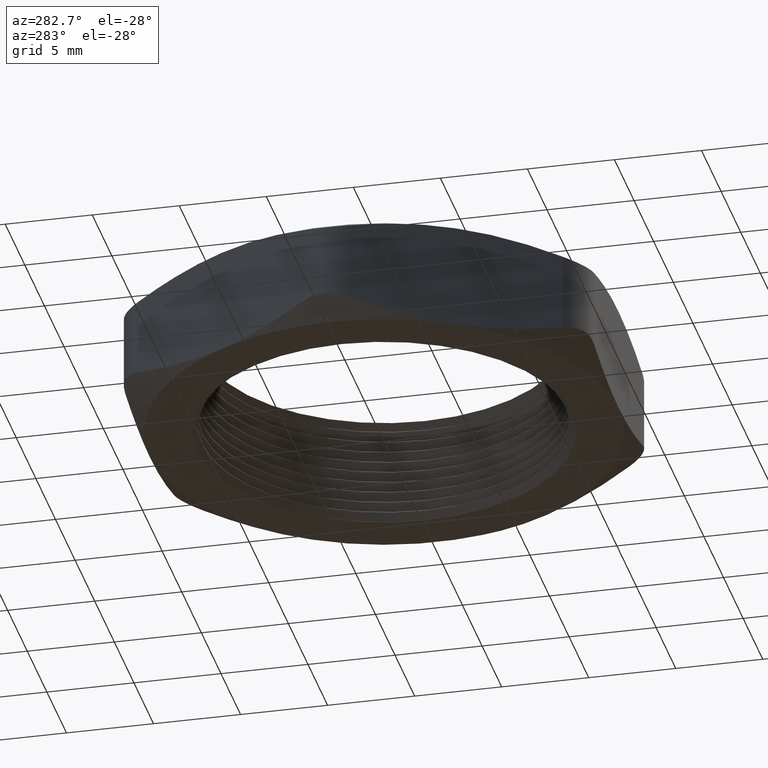
[diagram: clean part render]
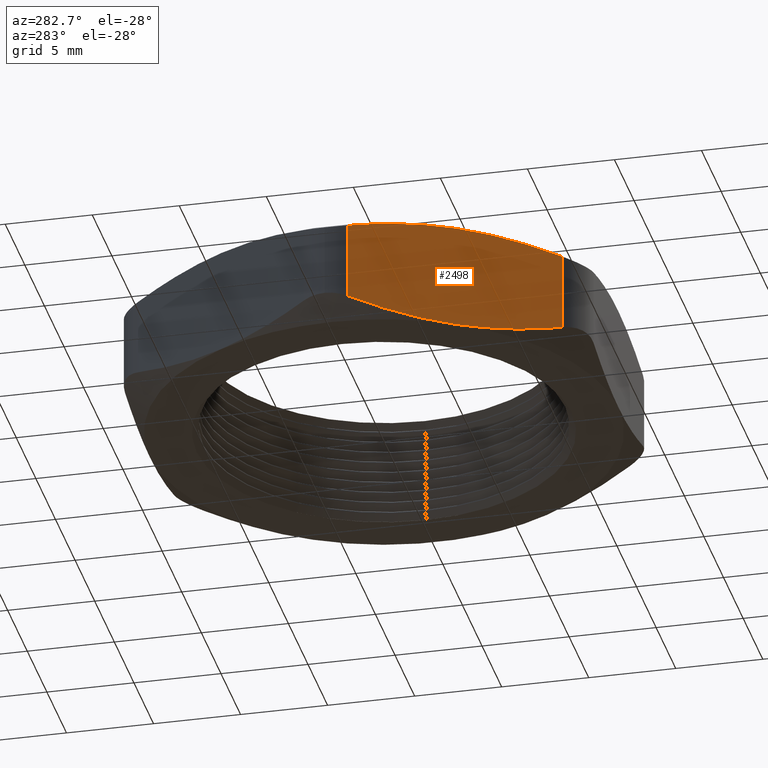
[diagram: same view with one face highlighted and labeled with its STEP entity id]
A machine part, auxiliary view. The second image highlights one B-rep face of the part: STEP entity #2498.
In plain terms, the highlighted planar face has unit normal (0.866, 0.5, 0).
Its self-contained STEP definition (entity closure, byte-faithful):
#2 = VERTEX_POINT ( 'NONE', #2358 ) ;
#164 = ORIENTED_EDGE ( 'NONE', *, *, #265, .F. ) ;
#234 = EDGE_CURVE ( 'NONE', #2, #2187, #764, .T. ) ;
#235 = ORIENTED_EDGE ( 'NONE', *, *, #2201, .T. ) ;
#236 = ORIENTED_EDGE ( 'NONE', *, *, #234, .F. ) ;
#265 = EDGE_CURVE ( 'NONE', #2195, #2336, #781, .T. ) ;
#753 = CARTESIAN_POINT ( 'NONE',  ( -0.5831237718815222000, -0.04999999999999999600, 0.03190638126214313100 ) ) ;
#754 = CARTESIAN_POINT ( 'NONE',  ( -0.5628122693413817300, -0.08518055437758760600, 0.02195764707233878500 ) ) ;
#755 = CARTESIAN_POINT ( 'NONE',  ( -0.5423412265098267500, -0.1206374406457596700, 0.01393523314386930400 ) ) ;
#756 = CARTESIAN_POINT ( 'NONE',  ( -0.5113207380161621800, -0.1743665027923925700, 0.005691994172069269100 ) ) ;
#757 = CARTESIAN_POINT ( 'NONE',  ( -0.5009282709238906900, -0.1923667838121941300, 0.003575779587992964100 ) ) ;
#758 = CARTESIAN_POINT ( 'NONE',  ( -0.4800286126102084000, -0.2285660538723212600, 0.0007285516907309828500 ) ) ;
#759 = CARTESIAN_POINT ( 'NONE',  ( -0.4694840780328568000, -0.2468297235024610200, -3.446240250064075000E-016 ) ) ;
#760 = CARTESIAN_POINT ( 'NONE',  ( -0.4589934640057527500, -0.2650000000000000700, 0.0000000000000000000 ) ) ;
#764 = B_SPLINE_CURVE_WITH_KNOTS ( 'NONE', 3,
 ( #760, #759, #758, #757, #756, #755, #754, #753 ),
 .UNSPECIFIED., .F., .F.,
 ( 4, 2, 2, 4 ),
 ( 0.007864521838742753400, 0.009447047830300864600, 0.01102957382185897800, 0.01419462580497520000 ),
 .UNSPECIFIED. ) ;
#773 = CARTESIAN_POINT ( 'NONE',  ( -0.4589934640057529700, -0.2650000000000000700, 0.2399999999999999900 ) ) ;
#774 = CARTESIAN_POINT ( 'NONE',  ( -0.4800637827398058200, -0.2285051374209494700, 0.2400000000000003500 ) ) ;
#775 = CARTESIAN_POINT ( 'NONE',  ( -0.5009233622360699200, -0.1923752859088982100, 0.2370658434367601300 ) ) ;
#776 = CARTESIAN_POINT ( 'NONE',  ( -0.5422754926343551500, -0.1207512950578547700, 0.2260873317065830700 ) ) ;
#777 = CARTESIAN_POINT ( 'NONE',  ( -0.5627695032311008600, -0.08525462745343608000, 0.2180633001058758800 ) ) ;
#778 = CARTESIAN_POINT ( 'NONE',  ( -0.5831237718815222000, -0.04999999999999993300, 0.2080936187378568700 ) ) ;
#781 = B_SPLINE_CURVE_WITH_KNOTS ( 'NONE', 3,
 ( #778, #777, #776, #775, #774, #773 ),
 .UNSPECIFIED., .F., .F.,
 ( 4, 2, 4 ),
 ( 0.001507538927942150700, 0.004686030383342454000, 0.007864521838742755100 ),
 .UNSPECIFIED. ) ;
#1325 = CARTESIAN_POINT ( 'NONE',  ( -0.5831237718815222000, -0.04999999999999993300, 0.2080936187378568700 ) ) ;
#1327 = CARTESIAN_POINT ( 'NONE',  ( -0.5831237718815222000, -0.04999999999999999600, 0.03190638126214313100 ) ) ;
#1343 = CARTESIAN_POINT ( 'NONE',  ( -0.3348631561299834100, -0.4799999999999998200, 0.2399999999999999900 ) ) ;
#1346 = DIRECTION ( 'NONE',  ( 0.0000000000000000000, 0.0000000000000000000, -1.000000000000000000 ) ) ;
#1347 = VECTOR ( 'NONE', #1346, 39.37007874015748100 ) ;
#1348 = CARTESIAN_POINT ( 'NONE',  ( -0.5831237718815222000, -0.04999999999999992600, 0.2399999999999999900 ) ) ;
#1349 = LINE ( 'NONE', #1348, #1347 ) ;
#1581 = DIRECTION ( 'NONE',  ( 0.0000000000000000000, 0.0000000000000000000, 1.000000000000000000 ) ) ;
#1582 = VECTOR ( 'NONE', #1581, 39.37007874015748100 ) ;
#1649 = CARTESIAN_POINT ( 'NONE',  ( -0.3551746586701374200, -0.4448194456223892300, 0.2180423529276668000 ) ) ;
#1650 = CARTESIAN_POINT ( 'NONE',  ( -0.3756457015016898000, -0.4093625593542214400, 0.2260647668561342500 ) ) ;
#1651 = CARTESIAN_POINT ( 'NONE',  ( -0.4066661899953503700, -0.3556334972075955700, 0.2343080058279321500 ) ) ;
#1652 = CARTESIAN_POINT ( 'NONE',  ( -0.4170586570876200800, -0.3376332161877962900, 0.2364242204120078400 ) ) ;
#1653 = CARTESIAN_POINT ( 'NONE',  ( -0.4379583154012999800, -0.3014339461276739400, 0.2392714483092691600 ) ) ;
#1654 = CARTESIAN_POINT ( 'NONE',  ( -0.4485028499786500300, -0.2831702764975366200, 0.2400000000000003500 ) ) ;
#1655 = CARTESIAN_POINT ( 'NONE',  ( -0.4589934640057529700, -0.2650000000000000700, 0.2399999999999999900 ) ) ;
#1657 = B_SPLINE_CURVE_WITH_KNOTS ( 'NONE', 3,
 ( #1655, #1654, #1653, #1652, #1651, #1650, #1649, #1714 ),
 .UNSPECIFIED., .F., .F.,
 ( 4, 2, 2, 4 ),
 ( 0.007864521838742755100, 0.009447047830300658200, 0.01102957382185856500, 0.01419462580497437100 ),
 .UNSPECIFIED. ) ;
#1662 = CARTESIAN_POINT ( 'NONE',  ( -0.4589934640057529700, -0.2650000000000000700, 0.2399999999999999900 ) ) ;
#1714 = CARTESIAN_POINT ( 'NONE',  ( -0.3348631561299994000, -0.4799999999999722300, 0.2080936187378646900 ) ) ;
#1840 = LINE ( 'NONE', #1343, #1582 ) ;
#1844 = CARTESIAN_POINT ( 'NONE',  ( -0.3348631561299994000, -0.4799999999999722300, 0.2080936187378646900 ) ) ;
#1917 = DIRECTION ( 'NONE',  ( -0.4999999999999997200, 0.8660254037844388200, 0.0000000000000000000 ) ) ;
#1918 = DIRECTION ( 'NONE',  ( 0.8660254037844388200, 0.4999999999999997200, 0.0000000000000000000 ) ) ;
#1919 = CARTESIAN_POINT ( 'NONE',  ( -0.6119912853410035500, 6.696893337883395700E-017, 0.2399999999999999900 ) ) ;
#1920 = AXIS2_PLACEMENT_3D ( 'NONE', #1919, #1918, #1917 ) ;
#1921 = PLANE ( 'NONE',  #1920 ) ;
#1923 = CARTESIAN_POINT ( 'NONE',  ( -0.4589934640057527500, -0.2650000000000000700, 0.0000000000000000000 ) ) ;
#1924 = CARTESIAN_POINT ( 'NONE',  ( -0.4379231452716995100, -0.3014948625790504500, -3.408140441314548000E-016 ) ) ;
#1925 = CARTESIAN_POINT ( 'NONE',  ( -0.4170635657754355200, -0.3376247140911017300, 0.002934156563239853900 ) ) ;
#1926 = CARTESIAN_POINT ( 'NONE',  ( -0.3757114353771504600, -0.4092487049421451600, 0.01391266829341694800 ) ) ;
#1927 = CARTESIAN_POINT ( 'NONE',  ( -0.3552174247804046900, -0.4447453725465636600, 0.02193669989412406000 ) ) ;
#1928 = CARTESIAN_POINT ( 'NONE',  ( -0.3348631561299834100, -0.4799999999999998700, 0.03190638126214307600 ) ) ;
#1929 = B_SPLINE_CURVE_WITH_KNOTS ( 'NONE', 3,
 ( #1928, #1927, #1926, #1925, #1924, #1923 ),
 .UNSPECIFIED., .F., .F.,
 ( 4, 2, 4 ),
 ( 0.001507538927942154200, 0.004686030383342454000, 0.007864521838742753400 ),
 .UNSPECIFIED. ) ;
#1930 = FACE_OUTER_BOUND ( 'NONE', #2497, .T. ) ;
#1931 = CARTESIAN_POINT ( 'NONE',  ( -0.3348631561299834100, -0.4799999999999998700, 0.03190638126214307600 ) ) ;
#2187 = VERTEX_POINT ( 'NONE', #1327 ) ;
#2195 = VERTEX_POINT ( 'NONE', #1325 ) ;
#2201 = EDGE_CURVE ( 'NONE', #2195, #2187, #1349, .T. ) ;
#2336 = VERTEX_POINT ( 'NONE', #1662 ) ;
#2337 = EDGE_CURVE ( 'NONE', #2336, #2492, #1657, .T. ) ;
#2338 = ORIENTED_EDGE ( 'NONE', *, *, #2337, .F. ) ;
#2358 = CARTESIAN_POINT ( 'NONE',  ( -0.4589934640057527500, -0.2650000000000000700, 0.0000000000000000000 ) ) ;
#2491 = ORIENTED_EDGE ( 'NONE', *, *, #2496, .F. ) ;
#2492 = VERTEX_POINT ( 'NONE', #1844 ) ;
#2493 = EDGE_CURVE ( 'NONE', #2494, #2492, #1840, .T. ) ;
#2494 = VERTEX_POINT ( 'NONE', #1931 ) ;
#2495 = ORIENTED_EDGE ( 'NONE', *, *, #2493, .T. ) ;
#2496 = EDGE_CURVE ( 'NONE', #2494, #2, #1929, .T. ) ;
#2497 = EDGE_LOOP ( 'NONE', ( #2491, #2495, #2338, #164, #235, #236 ) ) ;
#2498 = ADVANCED_FACE ( 'NONE', ( #1930 ), #1921, .F. ) ;